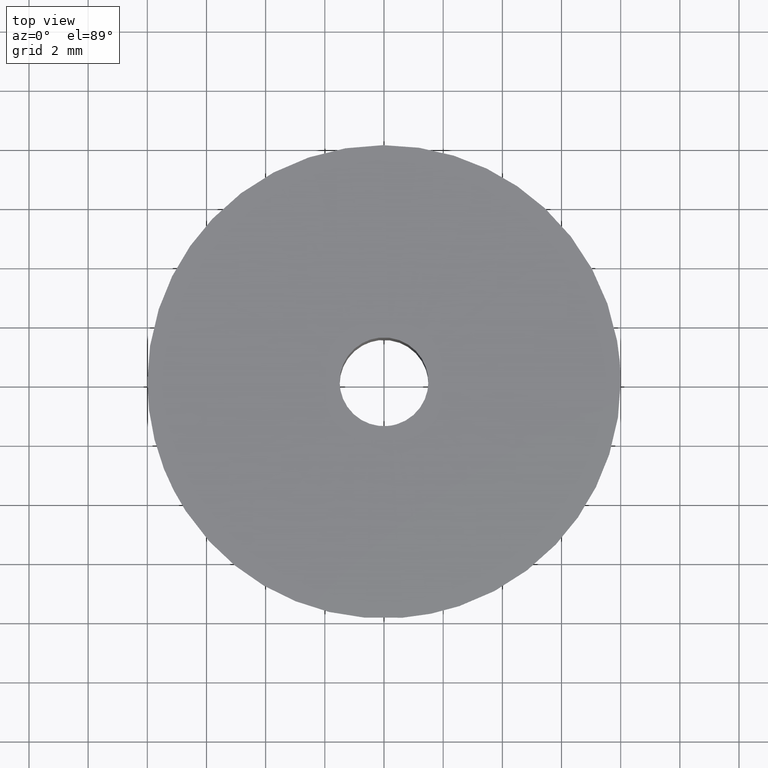
[diagram: clean part render]
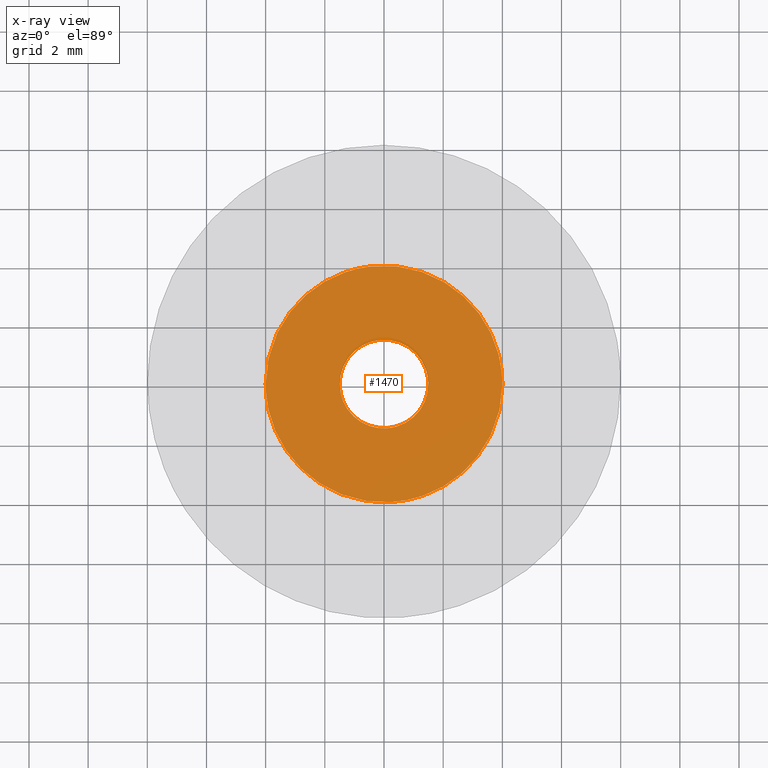
[diagram: x-ray — body ghosted, one internal face saturated and labeled with its STEP entity id]
A machine part, top view, then the same camera in x-ray: the body is ghosted and one INTERNAL B-rep face — a face not visible from any outside direction — is saturated and labeled: STEP entity #1470.
In plain terms, the highlighted face is a freeform B-spline surface patch.
Its self-contained STEP definition (entity closure, byte-faithful):
#750=CARTESIAN_POINT('',(-0.177051351996448,1.489514289544155,5.500000000000000));
#751=VERTEX_POINT('',#750);
#757=CARTESIAN_POINT('',(1.500000000000000,0.0,5.500000000000000));
#758=VERTEX_POINT('',#757);
#759=CARTESIAN_POINT('',(-0.177051351996448,1.489514289544155,5.500000000000000));
#760=CARTESIAN_POINT('',(-0.088836179489295,1.500000000000000,5.500000000000001));
#761=CARTESIAN_POINT('',(0.0,1.500000000000000,5.500000000000000));
#762=CARTESIAN_POINT('',(1.500000000000000,1.500000000000000,5.500000000000001));
#763=CARTESIAN_POINT('',(1.500000000000000,0.0,5.500000000000000));
#771=(BOUNDED_CURVE()B_SPLINE_CURVE(2,(#759,#760,#761,#762,#763),.UNSPECIFIED.,.F.,.U.)B_SPLINE_CURVE_WITH_KNOTS((3,2,3),(0.229562473513078,0.250000000000000,0.500000000000000),.UNSPECIFIED.)CURVE()GEOMETRIC_REPRESENTATION_ITEM()RATIONAL_B_SPLINE_CURVE((0.956026754182855,0.976055948330640,1.0,0.707106781186548,1.0))REPRESENTATION_ITEM(''));
#772=EDGE_CURVE('',#751,#758,#771,.T.);
#774=CARTESIAN_POINT('',(0.091572809311081,-1.497202197632262,5.500000000000000));
#775=VERTEX_POINT('',#774);
#776=CARTESIAN_POINT('',(1.500000000000000,0.0,5.500000000000000));
#777=CARTESIAN_POINT('',(1.500000000000001,-1.411059100341942,5.500000000000000));
#778=CARTESIAN_POINT('',(0.091572809311081,-1.497202197632263,5.500000000000000));
#786=(BOUNDED_CURVE()B_SPLINE_CURVE(2,(#776,#777,#778),.UNSPECIFIED.,.F.,.U.)B_SPLINE_CURVE_WITH_KNOTS((3,3),(0.500000000000000,0.739332962239942),.UNSPECIFIED.)CURVE()GEOMETRIC_REPRESENTATION_ITEM()RATIONAL_B_SPLINE_CURVE((1.0,0.719603993285540,0.976072041668859))REPRESENTATION_ITEM(''));
#787=EDGE_CURVE('',#758,#775,#786,.T.);
#861=CARTESIAN_POINT('',(-1.500000000000000,0.0,5.500000000000000));
#862=VERTEX_POINT('',#861);
#863=CARTESIAN_POINT('',(0.091572809311081,-1.497202197632263,5.500000000000000));
#864=CARTESIAN_POINT('',(0.045829144956703,-1.500000000000000,5.499999999999999));
#865=CARTESIAN_POINT('',(0.0,-1.500000000000000,5.500000000000000));
#866=CARTESIAN_POINT('',(-1.500000000000000,-1.500000000000000,5.500000000000001));
#867=CARTESIAN_POINT('',(-1.500000000000000,0.0,5.500000000000000));
#875=(BOUNDED_CURVE()B_SPLINE_CURVE(2,(#863,#864,#865,#866,#867),.UNSPECIFIED.,.F.,.U.)B_SPLINE_CURVE_WITH_KNOTS((3,2,3),(0.739332962239941,0.750000000000000,1.0),.UNSPECIFIED.)CURVE()GEOMETRIC_REPRESENTATION_ITEM()RATIONAL_B_SPLINE_CURVE((0.976072041668857,0.987502787901007,1.0,0.707106781186548,1.0))REPRESENTATION_ITEM(''));
#876=EDGE_CURVE('',#775,#862,#875,.T.);
#878=CARTESIAN_POINT('',(-1.500000000000000,0.0,5.500000000000000));
#879=CARTESIAN_POINT('',(-1.500000000000000,1.332261788906676,5.499999999999999));
#880=CARTESIAN_POINT('',(-0.177051351996448,1.489514289544155,5.500000000000000));
#888=(BOUNDED_CURVE()B_SPLINE_CURVE(2,(#878,#879,#880),.UNSPECIFIED.,.F.,.U.)B_SPLINE_CURVE_WITH_KNOTS((3,3),(0.0,0.229562473513078),.UNSPECIFIED.)CURVE()GEOMETRIC_REPRESENTATION_ITEM()RATIONAL_B_SPLINE_CURVE((1.0,0.731050832855907,0.956026754182855))REPRESENTATION_ITEM(''));
#889=EDGE_CURVE('',#862,#751,#888,.T.);
#917=CARTESIAN_POINT('',(-0.472135276174555,3.972038303061637,5.499999999999947));
#918=VERTEX_POINT('',#917);
#919=CARTESIAN_POINT('',(4.0,0.0,5.500000000000000));
#920=VERTEX_POINT('',#919);
#921=CARTESIAN_POINT('',(-0.472135276174555,3.972038303061638,5.499999999999947));
#922=CARTESIAN_POINT('',(-0.236895638593835,4.0,5.499999999999999));
#923=CARTESIAN_POINT('',(0.0,4.0,5.500000000000000));
#924=CARTESIAN_POINT('',(4.000000000000000,4.000000000000000,5.500000000000001));
#925=CARTESIAN_POINT('',(4.0,0.0,5.500000000000000));
#933=(BOUNDED_CURVE()B_SPLINE_CURVE(2,(#921,#922,#923,#924,#925),.UNSPECIFIED.,.F.,.U.)B_SPLINE_CURVE_WITH_KNOTS((3,2,3),(0.229562544250081,0.250000000000000,0.500000000000000),.UNSPECIFIED.)CURVE()GEOMETRIC_REPRESENTATION_ITEM()RATIONAL_B_SPLINE_CURVE((0.956026892830324,0.976056031204195,1.0,0.707106781186548,1.0))REPRESENTATION_ITEM(''));
#934=EDGE_CURVE('',#918,#920,#933,.T.);
#975=CARTESIAN_POINT('',(0.244191507870781,-3.992539355783076,5.500000000000103));
#976=VERTEX_POINT('',#975);
#982=CARTESIAN_POINT('',(4.0,0.0,5.500000000000000));
#983=CARTESIAN_POINT('',(4.000000000000000,-3.762826770073696,5.500000000000000));
#984=CARTESIAN_POINT('',(0.244191507870781,-3.992539355783075,5.500000000000104));
#992=(BOUNDED_CURVE()B_SPLINE_CURVE(2,(#982,#983,#984),.UNSPECIFIED.,.F.,.U.)B_SPLINE_CURVE_WITH_KNOTS((3,3),(0.500000000000000,0.739333076779450),.UNSPECIFIED.)CURVE()GEOMETRIC_REPRESENTATION_ITEM()RATIONAL_B_SPLINE_CURVE((1.0,0.719603859094159,0.976072287148952))REPRESENTATION_ITEM(''));
#993=EDGE_CURVE('',#920,#976,#992,.T.);
#1016=CARTESIAN_POINT('',(-4.0,0.0,5.500000000000000));
#1017=VERTEX_POINT('',#1016);
#1018=CARTESIAN_POINT('',(-4.0,0.0,5.500000000000000));
#1019=CARTESIAN_POINT('',(-4.0,3.552699601215653,5.500000000000001));
#1020=CARTESIAN_POINT('',(-0.472135276174555,3.972038303061638,5.499999999999947));
#1028=(BOUNDED_CURVE()B_SPLINE_CURVE(2,(#1018,#1019,#1020),.UNSPECIFIED.,.F.,.U.)B_SPLINE_CURVE_WITH_KNOTS((3,3),(0.0,0.229562544250081),.UNSPECIFIED.)CURVE()GEOMETRIC_REPRESENTATION_ITEM()RATIONAL_B_SPLINE_CURVE((1.0,0.731050749982353,0.956026892830324))REPRESENTATION_ITEM(''));
#1029=EDGE_CURVE('',#1017,#918,#1028,.T.);
#1031=CARTESIAN_POINT('',(0.244191507870781,-3.992539355783075,5.500000000000104));
#1032=CARTESIAN_POINT('',(0.122209724344552,-4.0,5.499999999999999));
#1033=CARTESIAN_POINT('',(0.0,-4.0,5.500000000000000));
#1034=CARTESIAN_POINT('',(-4.000000000000000,-4.000000000000000,5.500000000000001));
#1035=CARTESIAN_POINT('',(-4.0,0.0,5.500000000000000));
#1043=(BOUNDED_CURVE()B_SPLINE_CURVE(2,(#1031,#1032,#1033,#1034,#1035),.UNSPECIFIED.,.F.,.U.)B_SPLINE_CURVE_WITH_KNOTS((3,2,3),(0.739333076779450,0.750000000000000,1.0),.UNSPECIFIED.)CURVE()GEOMETRIC_REPRESENTATION_ITEM()RATIONAL_B_SPLINE_CURVE((0.976072287148952,0.987502922092389,1.0,0.707106781186548,1.0))REPRESENTATION_ITEM(''));
#1044=EDGE_CURVE('',#976,#1017,#1043,.T.);
#1453=CARTESIAN_POINT('',(-4.399599984494448,-4.399502853344676,5.500000000000000));
#1454=CARTESIAN_POINT('',(4.399600199071169,-4.399502853344676,5.500000000000000));
#1455=CARTESIAN_POINT('',(-4.399599984494448,4.399527243565319,5.500000000000000));
#1456=CARTESIAN_POINT('',(4.399600199071169,4.399527243565319,5.500000000000000));
#1457=B_SPLINE_SURFACE_WITH_KNOTS('',1,1,((#1453,#1455),(#1454,#1456)),.UNSPECIFIED.,.F.,.F.,.U.,(2,2),(2,2),(0.0,8.799200183565617),(0.0,8.799030096909995),.UNSPECIFIED.);
#1458=ORIENTED_EDGE('',*,*,#1029,.T.);
#1459=ORIENTED_EDGE('',*,*,#934,.T.);
#1460=ORIENTED_EDGE('',*,*,#993,.T.);
#1461=ORIENTED_EDGE('',*,*,#1044,.T.);
#1462=EDGE_LOOP('',(#1458,#1459,#1460,#1461));
#1463=FACE_OUTER_BOUND('',#1462,.T.);
#1464=ORIENTED_EDGE('',*,*,#787,.F.);
#1465=ORIENTED_EDGE('',*,*,#772,.F.);
#1466=ORIENTED_EDGE('',*,*,#889,.F.);
#1467=ORIENTED_EDGE('',*,*,#876,.F.);
#1468=EDGE_LOOP('',(#1464,#1465,#1466,#1467));
#1469=FACE_BOUND('',#1468,.T.);
#1470=ADVANCED_FACE('',(#1463,#1469),#1457,.F.);